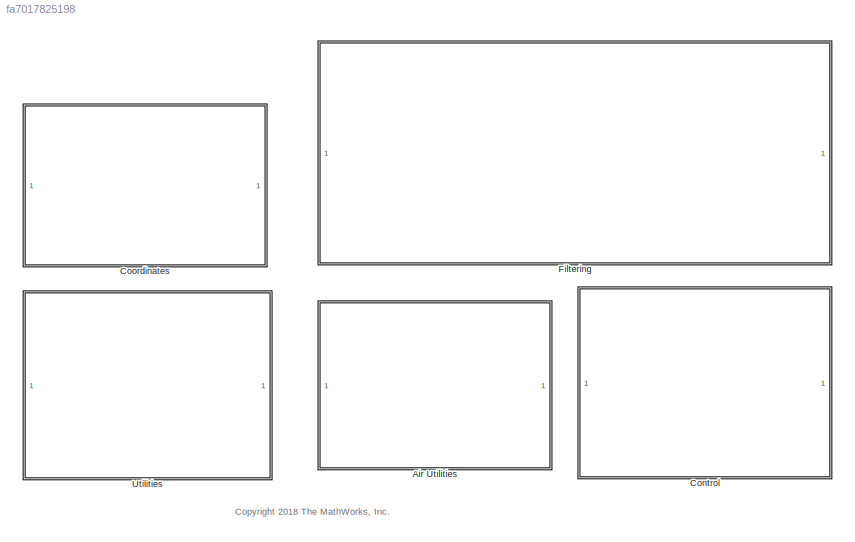
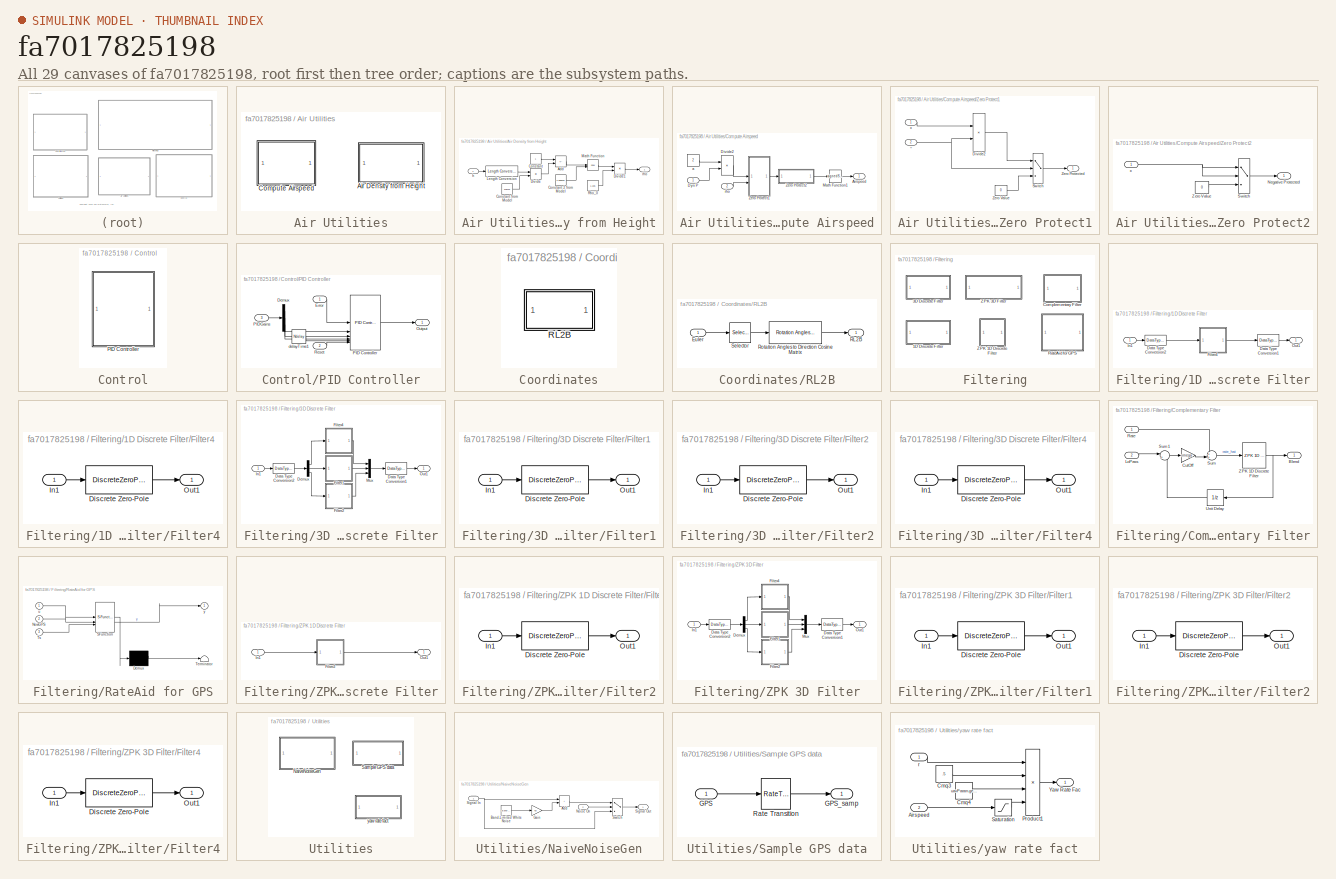
[diagram: thumbnail index - all 29 canvases of the model, root first then tree order]
MODEL slx_fa7017825198
KIND library
CONFIG AbsTol = auto
CONFIG EnableMultiTasking = on
CONFIG FixedStep = auto
CONFIG MaxStep = auto
CONFIG MinStep = auto
CONFIG RelTol = 1e-3
CONFIG SampleTimeConstraint = Unconstrained
CONFIG SolverName = ode45
CONFIG StartTime = 0.0
CONFIG StopTime = 10.0
BLOCK [SubSystem] Air Utilities
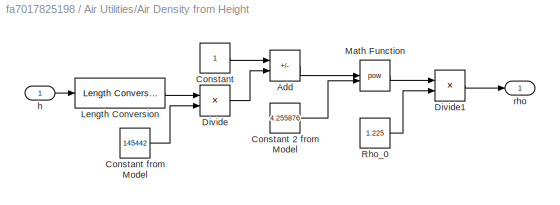
BLOCK [SubSystem] Air Utilities/Air Density from Height
BLOCK [Sum] Air Utilities/Air Density from Height/Add
  IconShape = rectangular
  Inputs = +-
BLOCK [Constant] Air Utilities/Air Density from Height/Constant
  AttributesFormatString = %<Value>
  OutDataTypeStr = single
BLOCK [Constant] Air Utilities/Air Density from Height/Constant 2 from Model
  AttributesFormatString = %<Value>
  OutDataTypeStr = single
  Value = 4.255876
BLOCK [Constant] Air Utilities/Air Density from Height/Constant from Model
  AttributesFormatString = %<Value>
  OutDataTypeStr = single
  Value = 145442
BLOCK [Product] Air Utilities/Air Density from Height/Divide
  Inputs = */
  SampleTime = .01
BLOCK [Product] Air Utilities/Air Density from Height/Divide1
BLOCK [Reference] Air Utilities/Air Density from Height/Length Conversion  REF=aerolibconvert2/Length Conversion
  SourceBlock = aerolibconvert2/Length Conversion
  SourceType = Length Conversion
BLOCK [Math] Air Utilities/Air Density from Height/Math Function
  Operator = pow
  SignedPower = on
BLOCK [Constant] Air Utilities/Air Density from Height/Rho_0
  AttributesFormatString = %<Value>
  Description = (Kg/m^3)
  OutDataTypeStr = single
  Value = 1.225
BLOCK [Inport] Air Utilities/Air Density from Height/h
  Unit = m
BLOCK [Outport] Air Utilities/Air Density from Height/rho 
  Unit = kg/m^3
  VectorParamsAs1DForOutWhenUnconnected = off
BLOCK [SubSystem] Air Utilities/Compute Airspeed
BLOCK [Outport] Air Utilities/Compute Airspeed/Airspeed 
  Unit = m/s
  VectorParamsAs1DForOutWhenUnconnected = off
BLOCK [Product] Air Utilities/Compute Airspeed/Divide2
  SampleTime = .01
BLOCK [Inport] Air Utilities/Compute Airspeed/Dyn P
  Unit = Pa
BLOCK [Sqrt] Air Utilities/Compute Airspeed/Math Function1
  AlgorithmType = Newton-Raphson
  Operator = signedSqrt
BLOCK [SubSystem] Air Utilities/Compute Airspeed/Zero Protect1
BLOCK [Product] Air Utilities/Compute Airspeed/Zero Protect1/Divide2
  Inputs = */
BLOCK [Switch] Air Utilities/Compute Airspeed/Zero Protect1/Switch
  Criteria = u2 ~= 0
  InputSameDT = off
  OutDataTypeStr = Inherit: Inherit via back propagation
  SaturateOnIntegerOverflow = off
  Threshold = 0.1
BLOCK [Outport] Air Utilities/Compute Airspeed/Zero Protect1/Zero Protected
  VectorParamsAs1DForOutWhenUnconnected = off
BLOCK [Constant] Air Utilities/Compute Airspeed/Zero Protect1/Zero Value
  OutDataTypeStr = single
  Value = 0
BLOCK [Inport] Air Utilities/Compute Airspeed/Zero Protect1/x
BLOCK [Inport] Air Utilities/Compute Airspeed/Zero Protect1/÷
  Port = 2
BLOCK [SubSystem] Air Utilities/Compute Airspeed/Zero Protect2
BLOCK [Outport] Air Utilities/Compute Airspeed/Zero Protect2/Negative Protected
  VectorParamsAs1DForOutWhenUnconnected = off
BLOCK [Switch] Air Utilities/Compute Airspeed/Zero Protect2/Switch
  InputSameDT = off
  OutDataTypeStr = Inherit: Inherit via back propagation
  SaturateOnIntegerOverflow = off
BLOCK [Constant] Air Utilities/Compute Airspeed/Zero Protect2/Zero Value
  OutDataTypeStr = single
  Value = 0
BLOCK [Inport] Air Utilities/Compute Airspeed/Zero Protect2/x
BLOCK [Constant] Air Utilities/Compute Airspeed/a
  AttributesFormatString = %<Value>
  OutDataTypeStr = single
  Value = 2
BLOCK [Inport] Air Utilities/Compute Airspeed/rho
  Port = 2
  Unit = kg/m^3
BLOCK [SubSystem] Control
BLOCK [SubSystem] Control/PID Controller
BLOCK [Demux] Control/PID Controller/Demux
  Outputs = 3
BLOCK [Inport] Control/PID Controller/Error
BLOCK [Outport] Control/PID Controller/Output
  VectorParamsAs1DForOutWhenUnconnected = off
BLOCK [Reference] Control/PID Controller/PID Controller  REF=slpidlib/PID Controller
  SourceBlock = slpidlib/PID Controller
  SourceType = PID 1dof
BLOCK [Inport] Control/PID Controller/PIDGains
  Port = 3
BLOCK [Inport] Control/PID Controller/Reset
  Port = 2
BLOCK [Constant] Control/PID Controller/delayTime1
  AttributesFormatString = %<Value>
  OutDataTypeStr = single
  Value = Ndelay
BLOCK [SubSystem] Coordinates
BLOCK [SubSystem] Coordinates/RL2B
BLOCK [Inport] Coordinates/RL2B/Euler
BLOCK [Outport] Coordinates/RL2B/RL2B
  VectorParamsAs1DForOutWhenUnconnected = off
BLOCK [Reference] Coordinates/RL2B/Rotation Angles to Direction Cosine Matrix  REF=sharedtransform/Rotation Angles to
Direction Cosine Matrix
  AttributesFormatString = Rotation Order: %<rotationOrder>
  SourceBlock = sharedtransform/Rotation Angles to\nDirection Cosine Matrix
  SourceType = Ang2DCM
BLOCK [Selector] Coordinates/RL2B/Selector
  IndexOptions = Index vector (dialog)
  Indices = [3 2 1]
  InputPortWidth = 3
  OutputSizes = 1
BLOCK [SubSystem] Filtering
BLOCK [SubSystem] Filtering/1D Discrete Filter
  AttributesFormatString = Fc = 40
  RTWFcnName = TustinFilter3D
  RTWFcnNameOpts = User specified
  RTWFileNameOpts = Use function name
  RTWSystemCode = Reusable function
BLOCK [DataTypeConversion] Filtering/1D Discrete Filter/Data Type Conversion1
  OutDataTypeStr = single
  RndMeth = Floor
  SaturateOnIntegerOverflow = off
BLOCK [DataTypeConversion] Filtering/1D Discrete Filter/Data Type Conversion2
  OutDataTypeStr = double
  RndMeth = Floor
  SaturateOnIntegerOverflow = off
BLOCK [SubSystem] Filtering/1D Discrete Filter/Filter4
BLOCK [DiscreteZeroPole] Filtering/1D Discrete Filter/Filter4/Discrete Zero-Pole
  Gain = g_d
  Poles = p_d
  SampleTime = -1
  Zeros = z_d
BLOCK [Inport] Filtering/1D Discrete Filter/Filter4/In1
BLOCK [Outport] Filtering/1D Discrete Filter/Filter4/Out1
  VectorParamsAs1DForOutWhenUnconnected = off
BLOCK [Inport] Filtering/1D Discrete Filter/In1
BLOCK [Outport] Filtering/1D Discrete Filter/Out1
  VectorParamsAs1DForOutWhenUnconnected = off
BLOCK [SubSystem] Filtering/3D Discrete Filter
  AttributesFormatString = Fc = 40
  RTWFcnName = TustinFilter3D
  RTWFcnNameOpts = User specified
  RTWFileNameOpts = Use function name
  RTWSystemCode = Reusable function
BLOCK [DataTypeConversion] Filtering/3D Discrete Filter/Data Type Conversion1
  OutDataTypeStr = single
  RndMeth = Floor
  SaturateOnIntegerOverflow = off
BLOCK [DataTypeConversion] Filtering/3D Discrete Filter/Data Type Conversion2
  OutDataTypeStr = double
  RndMeth = Floor
  SaturateOnIntegerOverflow = off
BLOCK [Demux] Filtering/3D Discrete Filter/Demux
  Outputs = 3
BLOCK [SubSystem] Filtering/3D Discrete Filter/Filter1
BLOCK [DiscreteZeroPole] Filtering/3D Discrete Filter/Filter1/Discrete Zero-Pole
  Gain = g_d
  Poles = p_d
  SampleTime = -1
  Zeros = z_d
BLOCK [Inport] Filtering/3D Discrete Filter/Filter1/In1
BLOCK [Outport] Filtering/3D Discrete Filter/Filter1/Out1
  VectorParamsAs1DForOutWhenUnconnected = off
BLOCK [SubSystem] Filtering/3D Discrete Filter/Filter2
BLOCK [DiscreteZeroPole] Filtering/3D Discrete Filter/Filter2/Discrete Zero-Pole
  Gain = g_d
  Poles = p_d
  SampleTime = -1
  Zeros = z_d
BLOCK [Inport] Filtering/3D Discrete Filter/Filter2/In1
BLOCK [Outport] Filtering/3D Discrete Filter/Filter2/Out1
  VectorParamsAs1DForOutWhenUnconnected = off
BLOCK [SubSystem] Filtering/3D Discrete Filter/Filter4
BLOCK [DiscreteZeroPole] Filtering/3D Discrete Filter/Filter4/Discrete Zero-Pole
  Gain = g_d
  Poles = p_d
  SampleTime = -1
  Zeros = z_d
BLOCK [Inport] Filtering/3D Discrete Filter/Filter4/In1
BLOCK [Outport] Filtering/3D Discrete Filter/Filter4/Out1
  VectorParamsAs1DForOutWhenUnconnected = off
BLOCK [Inport] Filtering/3D Discrete Filter/In1
BLOCK [Mux] Filtering/3D Discrete Filter/Mux
  DisplayOption = bar
  Inputs = 3
BLOCK [Outport] Filtering/3D Discrete Filter/Out1
  VectorParamsAs1DForOutWhenUnconnected = off
BLOCK [SubSystem] Filtering/Complementary Filter
BLOCK [Outport] Filtering/Complementary Filter/Blend
  VectorParamsAs1DForOutWhenUnconnected = off
BLOCK [Gain] Filtering/Complementary Filter/CutOff
  AttributesFormatString = %<Gain>
  Gain = omega
BLOCK [Inport] Filtering/Complementary Filter/LoPass
  Port = 2
BLOCK [Inport] Filtering/Complementary Filter/Rate
BLOCK [Sum] Filtering/Complementary Filter/Sum
  Inputs = ++|
BLOCK [Sum] Filtering/Complementary Filter/Sum1
  Inputs = |+-
BLOCK [UnitDelay] Filtering/Complementary Filter/Unit Delay
  HasFrameUpgradeWarning = on
  SampleTime = ap.apSampleTime
BLOCK [Reference] Filtering/Complementary Filter/ZPK 1D Discrete Filter  REF=$bdroot/Filtering/ZPK 1D Discrete
Filter
  SourceBlock = $bdroot/Filtering/ZPK 1D Discrete\nFilter
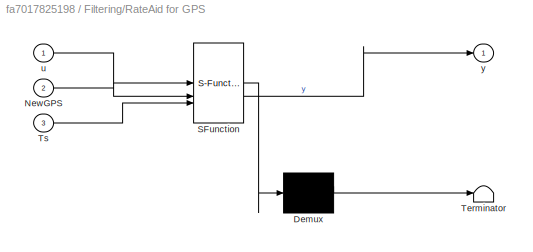
BLOCK [SubSystem] Filtering/RateAid for GPS
  ErrorFcn = Stateflow.Translate.translate
  PermitHierarchicalResolution = ExplicitOnly
  SFBlockType = MATLAB Function
  TreatAsAtomicUnit = on
BLOCK [Demux] Filtering/RateAid for GPS/ Demux 
  Outputs = 1
BLOCK [S-Function] Filtering/RateAid for GPS/ SFunction 
  EnableBusSupport = off
  FunctionName = sf_sfun
  PortCounts = [3 2]
  SFcnIsStateOwnerBlock = off
  SFunctionDeploymentMode = off
  Tag = Stateflow S-Function 36
BLOCK [Terminator] Filtering/RateAid for GPS/ Terminator 
BLOCK [Inport] Filtering/RateAid for GPS/NewGPS
  Port = 2
BLOCK [Inport] Filtering/RateAid for GPS/Ts
  Port = 3
BLOCK [Inport] Filtering/RateAid for GPS/u
BLOCK [Outport] Filtering/RateAid for GPS/y
  VectorParamsAs1DForOutWhenUnconnected = off
BLOCK [SubSystem] Filtering/ZPK 1D Discrete Filter
  RTWFcnName = TustinFilter3D
  RTWFcnNameOpts = User specified
  RTWFileNameOpts = Use function name
  RTWSystemCode = Reusable function
BLOCK [SubSystem] Filtering/ZPK 1D Discrete Filter/Filter2
BLOCK [DiscreteZeroPole] Filtering/ZPK 1D Discrete Filter/Filter2/Discrete Zero-Pole
  Gain = g_d
  Poles = p_d
  SampleTime = -1
  Zeros = z_d
BLOCK [Inport] Filtering/ZPK 1D Discrete Filter/Filter2/In1
BLOCK [Outport] Filtering/ZPK 1D Discrete Filter/Filter2/Out1
  VectorParamsAs1DForOutWhenUnconnected = off
BLOCK [Inport] Filtering/ZPK 1D Discrete Filter/In1
BLOCK [Outport] Filtering/ZPK 1D Discrete Filter/Out1
  VectorParamsAs1DForOutWhenUnconnected = off
BLOCK [SubSystem] Filtering/ZPK 3D Filter
  RTWFcnName = TustinFilter3D
  RTWFcnNameOpts = User specified
  RTWFileNameOpts = Use function name
  RTWSystemCode = Reusable function
BLOCK [DataTypeConversion] Filtering/ZPK 3D Filter/Data Type Conversion1
  OutDataTypeStr = single
  RndMeth = Floor
  SaturateOnIntegerOverflow = off
BLOCK [DataTypeConversion] Filtering/ZPK 3D Filter/Data Type Conversion2
  OutDataTypeStr = double
  RndMeth = Floor
  SaturateOnIntegerOverflow = off
BLOCK [Demux] Filtering/ZPK 3D Filter/Demux
  Outputs = 3
BLOCK [SubSystem] Filtering/ZPK 3D Filter/Filter1
BLOCK [DiscreteZeroPole] Filtering/ZPK 3D Filter/Filter1/Discrete Zero-Pole
  Gain = g_d
  Poles = p_d
  SampleTime = -1
  Zeros = z_d
BLOCK [Inport] Filtering/ZPK 3D Filter/Filter1/In1
BLOCK [Outport] Filtering/ZPK 3D Filter/Filter1/Out1
  VectorParamsAs1DForOutWhenUnconnected = off
BLOCK [SubSystem] Filtering/ZPK 3D Filter/Filter2
BLOCK [DiscreteZeroPole] Filtering/ZPK 3D Filter/Filter2/Discrete Zero-Pole
  Gain = g_d
  Poles = p_d
  SampleTime = -1
  Zeros = z_d
BLOCK [Inport] Filtering/ZPK 3D Filter/Filter2/In1
BLOCK [Outport] Filtering/ZPK 3D Filter/Filter2/Out1
  VectorParamsAs1DForOutWhenUnconnected = off
BLOCK [SubSystem] Filtering/ZPK 3D Filter/Filter4
BLOCK [DiscreteZeroPole] Filtering/ZPK 3D Filter/Filter4/Discrete Zero-Pole
  Gain = g_d
  Poles = p_d
  SampleTime = -1
  Zeros = z_d
BLOCK [Inport] Filtering/ZPK 3D Filter/Filter4/In1
BLOCK [Outport] Filtering/ZPK 3D Filter/Filter4/Out1
  VectorParamsAs1DForOutWhenUnconnected = off
BLOCK [Inport] Filtering/ZPK 3D Filter/In1
BLOCK [Mux] Filtering/ZPK 3D Filter/Mux
  DisplayOption = bar
  Inputs = 3
BLOCK [Outport] Filtering/ZPK 3D Filter/Out1
  VectorParamsAs1DForOutWhenUnconnected = off
BLOCK [SubSystem] Utilities
BLOCK [SubSystem] Utilities/NaiveNoiseGen
BLOCK [Sum] Utilities/NaiveNoiseGen/Add
  IconShape = rectangular
BLOCK [Reference] Utilities/NaiveNoiseGen/Band-Limited White Noise  REF=simulink/Sources/Band-Limited
White Noise
  SourceBlock = simulink/Sources/Band-Limited\nWhite Noise
  SourceType = Band-Limited White Noise.
BLOCK [Gain] Utilities/NaiveNoiseGen/Gain
  AttributesFormatString = %<Gain>
  Gain = ng
BLOCK [Inport] Utilities/NaiveNoiseGen/Noise On
  Port = 2
BLOCK [Inport] Utilities/NaiveNoiseGen/Signal In
BLOCK [Outport] Utilities/NaiveNoiseGen/Signal Out
  VectorParamsAs1DForOutWhenUnconnected = off
BLOCK [Switch] Utilities/NaiveNoiseGen/Switch
  InputSameDT = off
  SaturateOnIntegerOverflow = off
  Threshold = 0.3
BLOCK [SubSystem] Utilities/Sample GPS data
BLOCK [Inport] Utilities/Sample GPS data/GPS
BLOCK [Outport] Utilities/Sample GPS data/GPS_samp
  VectorParamsAs1DForOutWhenUnconnected = off
BLOCK [RateTransition] Utilities/Sample GPS data/Rate Transition
  AttributesFormatString = %<OutPortSampleTime>
  OutPortSampleTime = sensors.gpsRefreshRate
BLOCK [SubSystem] Utilities/yaw rate fact
BLOCK [Inport] Utilities/yaw rate fact/Airspeed
  Port = 2
BLOCK [Constant] Utilities/yaw rate fact/Cmq3
  AttributesFormatString = %<Value>
  NameLocation = top
  Value = .5
BLOCK [Constant] Utilities/yaw rate fact/Cmq4
  AttributesFormatString = %<Value>
  Value = uavParam.geom.b
BLOCK [Product] Utilities/yaw rate fact/Product1
  Inputs = ***/
  OutDataTypeStr = Inherit: Same as first input
  SaturateOnIntegerOverflow = on
BLOCK [Saturate] Utilities/yaw rate fact/Saturation
  AttributesFormatString = [%<LowerLimit>  %<UpperLimit>]
  LowerLimit = 0.1
  UpperLimit = inf
BLOCK [Outport] Utilities/yaw rate fact/Yaw Rate Fac
  VectorParamsAs1DForOutWhenUnconnected = off
BLOCK [Inport] Utilities/yaw rate fact/r
ANNOTATION (root): <copyright redacted>
LINE Air Utilities/Air Density from Height/Add:1 -> Air Utilities/Air Density from Height/Math Function:1
LINE Air Utilities/Air Density from Height/Constant 2 from Model:1 -> Air Utilities/Air Density from Height/Math Function:2
LINE Air Utilities/Air Density from Height/Constant from Model:1 -> Air Utilities/Air Density from Height/Divide:2
LINE Air Utilities/Air Density from Height/Constant:1 -> Air Utilities/Air Density from Height/Add:1
LINE Air Utilities/Air Density from Height/Divide1:1 -> Air Utilities/Air Density from Height/rho :1
LINE Air Utilities/Air Density from Height/Divide:1 -> Air Utilities/Air Density from Height/Add:2
LINE Air Utilities/Air Density from Height/Length Conversion:1 -> Air Utilities/Air Density from Height/Divide:1
LINE Air Utilities/Air Density from Height/Math Function:1 -> Air Utilities/Air Density from Height/Divide1:1
LINE Air Utilities/Air Density from Height/Rho_0:1 -> Air Utilities/Air Density from Height/Divide1:2
LINE Air Utilities/Air Density from Height/h:1 -> Air Utilities/Air Density from Height/Length Conversion:1
LINE Air Utilities/Compute Airspeed/Divide2:1 -> Air Utilities/Compute Airspeed/Zero Protect1:1
LINE Air Utilities/Compute Airspeed/Dyn P:1 -> Air Utilities/Compute Airspeed/Divide2:2
LINE Air Utilities/Compute Airspeed/Math Function1:1 -> Air Utilities/Compute Airspeed/Airspeed :1
LINE Air Utilities/Compute Airspeed/Zero Protect1/Divide2:1 -> Air Utilities/Compute Airspeed/Zero Protect1/Switch:1
LINE Air Utilities/Compute Airspeed/Zero Protect1/Switch:1 -> Air Utilities/Compute Airspeed/Zero Protect1/Zero Protected:1
LINE Air Utilities/Compute Airspeed/Zero Protect1/Zero Value:1 -> Air Utilities/Compute Airspeed/Zero Protect1/Switch:3
LINE Air Utilities/Compute Airspeed/Zero Protect1/x:1 -> Air Utilities/Compute Airspeed/Zero Protect1/Divide2:1
NET Air Utilities/Compute Airspeed/Zero Protect1/÷:1 -> Air Utilities/Compute Airspeed/Zero Protect1/Divide2:2, Air Utilities/Compute Airspeed/Zero Protect1/Switch:2
LINE Air Utilities/Compute Airspeed/Zero Protect1:1 -> Air Utilities/Compute Airspeed/Zero Protect2:1
LINE Air Utilities/Compute Airspeed/Zero Protect2/Switch:1 -> Air Utilities/Compute Airspeed/Zero Protect2/Negative Protected:1
LINE Air Utilities/Compute Airspeed/Zero Protect2/Zero Value:1 -> Air Utilities/Compute Airspeed/Zero Protect2/Switch:3
NET Air Utilities/Compute Airspeed/Zero Protect2/x:1 -> Air Utilities/Compute Airspeed/Zero Protect2/Switch:1, Air Utilities/Compute Airspeed/Zero Protect2/Switch:2
LINE Air Utilities/Compute Airspeed/Zero Protect2:1 -> Air Utilities/Compute Airspeed/Math Function1:1
LINE Air Utilities/Compute Airspeed/a:1 -> Air Utilities/Compute Airspeed/Divide2:1
LINE Air Utilities/Compute Airspeed/rho:1 -> Air Utilities/Compute Airspeed/Zero Protect1:2
LINE Control/PID Controller/Demux:1 -> Control/PID Controller/PID Controller:2
LINE Control/PID Controller/Demux:2 -> Control/PID Controller/PID Controller:3
LINE Control/PID Controller/Demux:3 -> Control/PID Controller/PID Controller:4
LINE Control/PID Controller/Error:1 -> Control/PID Controller/PID Controller:1
LINE Control/PID Controller/PID Controller:1 -> Control/PID Controller/Output:1
LINE Control/PID Controller/PIDGains:1 -> Control/PID Controller/Demux:1
LINE Control/PID Controller/Reset:1 -> Control/PID Controller/PID Controller:6
LINE Control/PID Controller/delayTime1:1 -> Control/PID Controller/PID Controller:5
LINE Coordinates/RL2B/Euler:1 -> Coordinates/RL2B/Selector:1
LINE Coordinates/RL2B/Rotation Angles to Direction Cosine Matrix:1 -> Coordinates/RL2B/RL2B:1
LINE Coordinates/RL2B/Selector:1 -> Coordinates/RL2B/Rotation Angles to Direction Cosine Matrix:1
LINE Filtering/1D Discrete Filter/Data Type Conversion1:1 -> Filtering/1D Discrete Filter/Out1:1
LINE Filtering/1D Discrete Filter/Data Type Conversion2:1 -> Filtering/1D Discrete Filter/Filter4:1
LINE Filtering/1D Discrete Filter/Filter4:1 -> Filtering/1D Discrete Filter/Data Type Conversion1:1
LINE Filtering/1D Discrete Filter/In1:1 -> Filtering/1D Discrete Filter/Data Type Conversion2:1
LINE Filtering/3D Discrete Filter/Data Type Conversion1:1 -> Filtering/3D Discrete Filter/Out1:1
LINE Filtering/3D Discrete Filter/Data Type Conversion2:1 -> Filtering/3D Discrete Filter/Demux:1
LINE Filtering/3D Discrete Filter/Demux:1 -> Filtering/3D Discrete Filter/Filter4:1
LINE Filtering/3D Discrete Filter/Demux:2 -> Filtering/3D Discrete Filter/Filter1:1
LINE Filtering/3D Discrete Filter/Demux:3 -> Filtering/3D Discrete Filter/Filter2:1
LINE Filtering/3D Discrete Filter/Filter1:1 -> Filtering/3D Discrete Filter/Mux:2
LINE Filtering/3D Discrete Filter/Filter2:1 -> Filtering/3D Discrete Filter/Mux:3
LINE Filtering/3D Discrete Filter/Filter4:1 -> Filtering/3D Discrete Filter/Mux:1
LINE Filtering/3D Discrete Filter/In1:1 -> Filtering/3D Discrete Filter/Data Type Conversion2:1
LINE Filtering/3D Discrete Filter/Mux:1 -> Filtering/3D Discrete Filter/Data Type Conversion1:1
LINE Filtering/Complementary Filter/CutOff:1 -> Filtering/Complementary Filter/Sum:2
LINE Filtering/Complementary Filter/LoPass:1 -> Filtering/Complementary Filter/Sum1:1
LINE Filtering/Complementary Filter/Rate:1 -> Filtering/Complementary Filter/Sum:1
LINE Filtering/Complementary Filter/Sum1:1 -> Filtering/Complementary Filter/CutOff:1
LINE Filtering/Complementary Filter/Sum:1 -> Filtering/Complementary Filter/ZPK 1D Discrete Filter:1
LINE Filtering/Complementary Filter/Unit Delay:1 -> Filtering/Complementary Filter/Sum1:2
NET Filtering/Complementary Filter/ZPK 1D Discrete Filter:1 -> Filtering/Complementary Filter/Blend:1, Filtering/Complementary Filter/Unit Delay:1
LINE Filtering/ZPK 1D Discrete Filter/Filter2:1 -> Filtering/ZPK 1D Discrete Filter/Out1:1
LINE Filtering/ZPK 1D Discrete Filter/In1:1 -> Filtering/ZPK 1D Discrete Filter/Filter2:1
LINE Filtering/ZPK 3D Filter/Data Type Conversion1:1 -> Filtering/ZPK 3D Filter/Out1:1
LINE Filtering/ZPK 3D Filter/Data Type Conversion2:1 -> Filtering/ZPK 3D Filter/Demux:1
LINE Filtering/ZPK 3D Filter/Demux:1 -> Filtering/ZPK 3D Filter/Filter4:1
LINE Filtering/ZPK 3D Filter/Demux:2 -> Filtering/ZPK 3D Filter/Filter1:1
LINE Filtering/ZPK 3D Filter/Demux:3 -> Filtering/ZPK 3D Filter/Filter2:1
LINE Filtering/ZPK 3D Filter/Filter1:1 -> Filtering/ZPK 3D Filter/Mux:2
LINE Filtering/ZPK 3D Filter/Filter2:1 -> Filtering/ZPK 3D Filter/Mux:3
LINE Filtering/ZPK 3D Filter/Filter4:1 -> Filtering/ZPK 3D Filter/Mux:1
LINE Filtering/ZPK 3D Filter/In1:1 -> Filtering/ZPK 3D Filter/Data Type Conversion2:1
LINE Filtering/ZPK 3D Filter/Mux:1 -> Filtering/ZPK 3D Filter/Data Type Conversion1:1
LINE Utilities/NaiveNoiseGen/Add:1 -> Utilities/NaiveNoiseGen/Switch:1
LINE Utilities/NaiveNoiseGen/Band-Limited White Noise:1 -> Utilities/NaiveNoiseGen/Gain:1
LINE Utilities/NaiveNoiseGen/Gain:1 -> Utilities/NaiveNoiseGen/Add:2
LINE Utilities/NaiveNoiseGen/Noise On:1 -> Utilities/NaiveNoiseGen/Switch:2
NET Utilities/NaiveNoiseGen/Signal In:1 -> Utilities/NaiveNoiseGen/Add:1, Utilities/NaiveNoiseGen/Switch:3
LINE Utilities/NaiveNoiseGen/Switch:1 -> Utilities/NaiveNoiseGen/Signal Out:1
LINE Utilities/Sample GPS data/GPS:1 -> Utilities/Sample GPS data/Rate Transition:1
LINE Utilities/Sample GPS data/Rate Transition:1 -> Utilities/Sample GPS data/GPS_samp:1
LINE Utilities/yaw rate fact/Airspeed:1 -> Utilities/yaw rate fact/Saturation:1
LINE Utilities/yaw rate fact/Cmq3:1 -> Utilities/yaw rate fact/Product1:2
LINE Utilities/yaw rate fact/Cmq4:1 -> Utilities/yaw rate fact/Product1:3
LINE Utilities/yaw rate fact/Product1:1 -> Utilities/yaw rate fact/Yaw Rate Fac:1
LINE Utilities/yaw rate fact/Saturation:1 -> Utilities/yaw rate fact/Product1:4
LINE Utilities/yaw rate fact/r:1 -> Utilities/yaw rate fact/Product1:1
note: NET lines group one-source signal fan-out (src -> all destinations, sorted); 1:1 wires keep LINE
CHART Filtering/RateAid for GPS states=1 transitions=1
  STATE_LABEL 'eML_blk_kernel()'
  STATE_LABEL 'SCRIPT:\nfunction y = RateAid(u,NewGPS,Ts)\npersistent LastU;\npersistent TimeSinceLast;\npersistent rate;\npersistent OldRate;\n\nif (isempty(LastU))\n    LastU = single(0.);\n    TimeSinceLast = single(Ts);\n    rate = single(0);\n    OldRate = single(0);\nend\n\nif (NewGPS)\n    OldRate = rate;\n    rate = single((u - LastU)/TimeSinceLast);\n    TimeSinceLast = single(0);\n    LastU = u;\nend\ny = u + ( .5*rate + ...<+63ch>'
CHART  states=0 transitions=0
